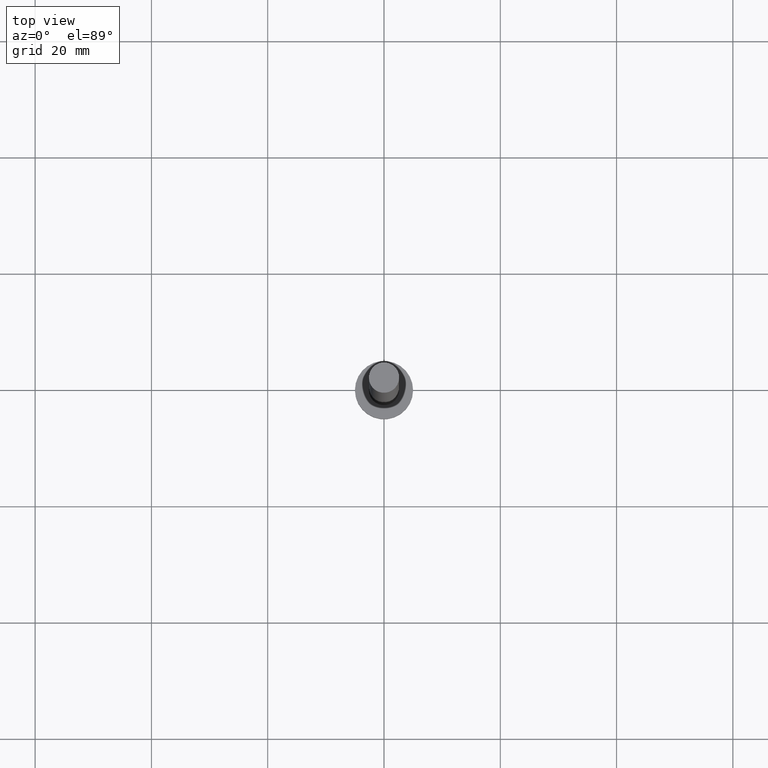
[diagram: clean part render]
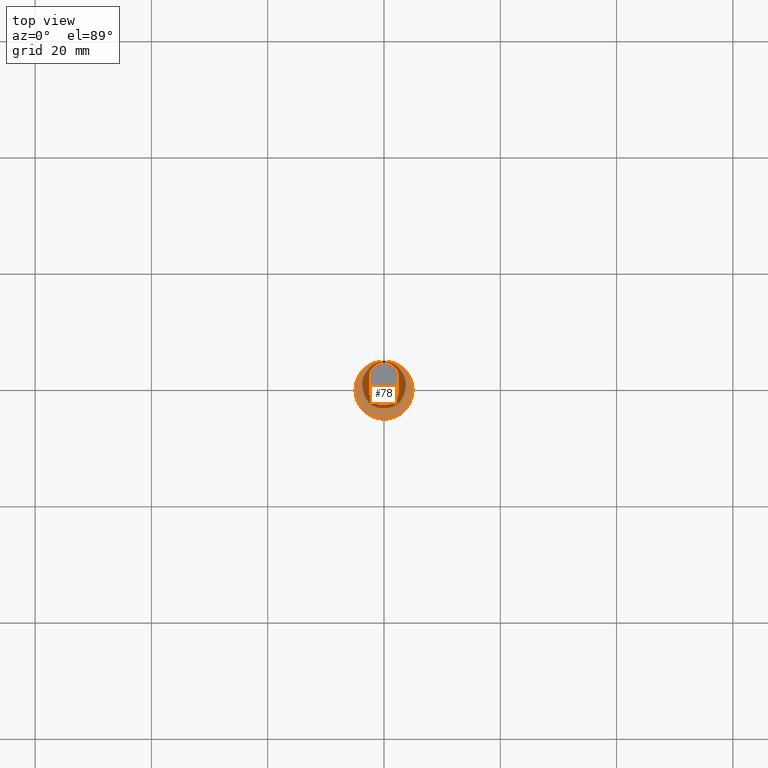
[diagram: same view with one face highlighted and labeled with its STEP entity id]
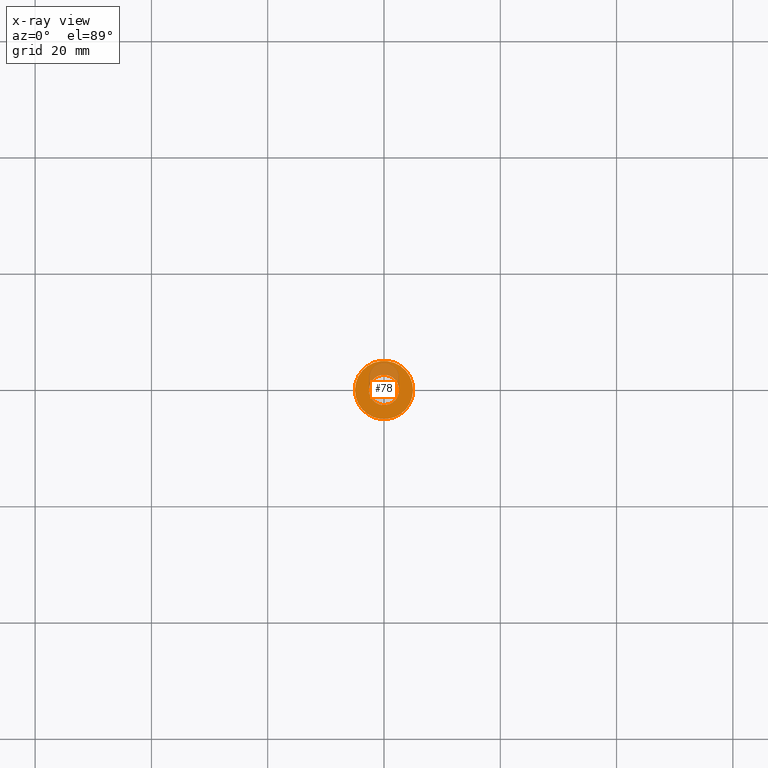
[diagram: x-ray of the same camera — body ghosted, the highlighted face saturated]
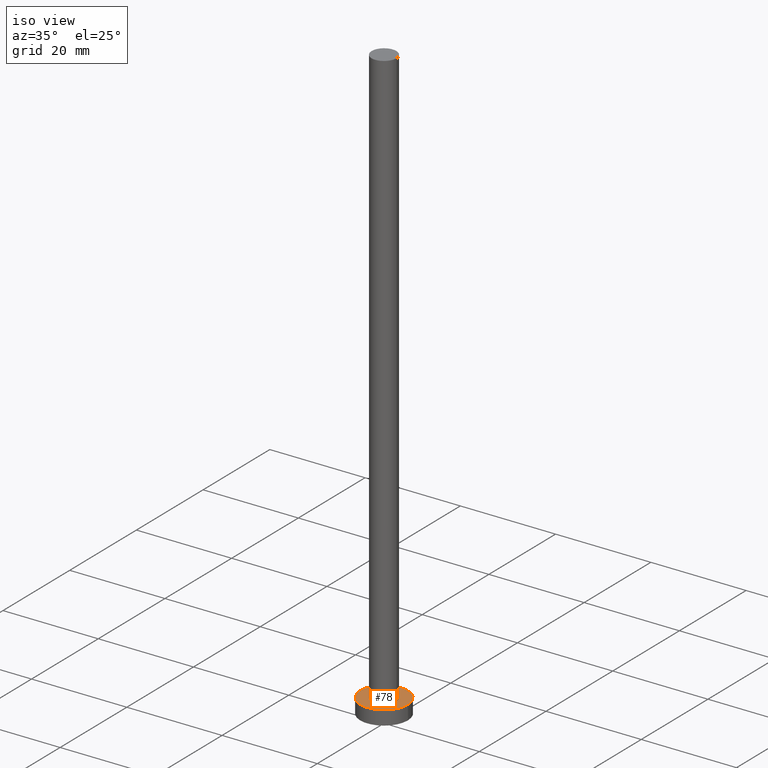
[diagram: same view with one face highlighted and labeled with its STEP entity id]
A machine part, top view. The second image highlights one B-rep face of the part: STEP entity #78.
The next image is the same camera in x-ray: the body ghosted, the highlighted face saturated — about 19% of this face is hidden behind the body in this view.
A second angle (iso view) of the same face is appended — the face is thin or edge-on in the first view.
In plain terms, the highlighted planar face has unit normal (0, 0, 1).
Its self-contained STEP definition (entity closure, byte-faithful):
#5 = CIRCLE ( 'NONE', #147, 2.600000000000000089 ) ;
#6 = AXIS2_PLACEMENT_3D ( 'NONE', #53, #135, #193 ) ;
#17 = ORIENTED_EDGE ( 'NONE', *, *, #155, .F. ) ;
#30 = VERTEX_POINT ( 'NONE', #186 ) ;
#31 = AXIS2_PLACEMENT_3D ( 'NONE', #204, #248, #105 ) ;
#37 = CARTESIAN_POINT ( 'NONE',  ( 2.600000000000000089, 3.184081677783117698E-16, 3.000000000000000000 ) ) ;
#45 = EDGE_LOOP ( 'NONE', ( #106, #17 ) ) ;
#47 = VERTEX_POINT ( 'NONE', #37 ) ;
#48 = FACE_BOUND ( 'NONE', #45, .T. ) ;
#53 = CARTESIAN_POINT ( 'NONE',  ( 0.000000000000000000, 0.000000000000000000, 3.000000000000000000 ) ) ;
#64 = CIRCLE ( 'NONE', #31, 5.000000000000000000 ) ;
#67 = EDGE_CURVE ( 'NONE', #30, #47, #5, .T. ) ;
#68 = CARTESIAN_POINT ( 'NONE',  ( 0.000000000000000000, 0.000000000000000000, 3.000000000000000000 ) ) ;
#69 = FACE_OUTER_BOUND ( 'NONE', #104, .T. ) ;
#74 = EDGE_CURVE ( 'NONE', #227, #210, #64, .T. ) ;
#75 = CARTESIAN_POINT ( 'NONE',  ( 0.000000000000000000, 0.000000000000000000, 3.000000000000000000 ) ) ;
#76 = CARTESIAN_POINT ( 'NONE',  ( 5.000000000000000000, 6.123233995736766282E-16, 3.000000000000000000 ) ) ;
#78 = ADVANCED_FACE ( 'NONE', ( #48, #69 ), #149, .T. ) ;
#87 = CARTESIAN_POINT ( 'NONE',  ( 0.000000000000000000, 0.000000000000000000, 3.000000000000000000 ) ) ;
#94 = CARTESIAN_POINT ( 'NONE',  ( -5.000000000000000000, 0.000000000000000000, 3.000000000000000000 ) ) ;
#99 = AXIS2_PLACEMENT_3D ( 'NONE', #68, #188, #127 ) ;
#103 = AXIS2_PLACEMENT_3D ( 'NONE', #75, #236, #235 ) ;
#104 = EDGE_LOOP ( 'NONE', ( #133, #243 ) ) ;
#105 = DIRECTION ( 'NONE',  ( 1.000000000000000000, 0.000000000000000000, 0.000000000000000000 ) ) ;
#106 = ORIENTED_EDGE ( 'NONE', *, *, #67, .F. ) ;
#127 = DIRECTION ( 'NONE',  ( 1.000000000000000000, 0.000000000000000000, -0.000000000000000000 ) ) ;
#133 = ORIENTED_EDGE ( 'NONE', *, *, #74, .T. ) ;
#135 = DIRECTION ( 'NONE',  ( 0.000000000000000000, 0.000000000000000000, 1.000000000000000000 ) ) ;
#147 = AXIS2_PLACEMENT_3D ( 'NONE', #87, #150, #190 ) ;
#149 = PLANE ( 'NONE',  #99 ) ;
#150 = DIRECTION ( 'NONE',  ( 0.000000000000000000, 0.000000000000000000, 1.000000000000000000 ) ) ;
#155 = EDGE_CURVE ( 'NONE', #47, #30, #208, .T. ) ;
#180 = EDGE_CURVE ( 'NONE', #210, #227, #196, .T. ) ;
#186 = CARTESIAN_POINT ( 'NONE',  ( -2.600000000000000089, 0.000000000000000000, 3.000000000000000000 ) ) ;
#188 = DIRECTION ( 'NONE',  ( 0.000000000000000000, 0.000000000000000000, 1.000000000000000000 ) ) ;
#190 = DIRECTION ( 'NONE',  ( 1.000000000000000000, 0.000000000000000000, 0.000000000000000000 ) ) ;
#193 = DIRECTION ( 'NONE',  ( 1.000000000000000000, 0.000000000000000000, 0.000000000000000000 ) ) ;
#196 = CIRCLE ( 'NONE', #103, 5.000000000000000000 ) ;
#204 = CARTESIAN_POINT ( 'NONE',  ( 0.000000000000000000, 0.000000000000000000, 3.000000000000000000 ) ) ;
#208 = CIRCLE ( 'NONE', #6, 2.600000000000000089 ) ;
#210 = VERTEX_POINT ( 'NONE', #76 ) ;
#227 = VERTEX_POINT ( 'NONE', #94 ) ;
#235 = DIRECTION ( 'NONE',  ( 1.000000000000000000, 0.000000000000000000, 0.000000000000000000 ) ) ;
#236 = DIRECTION ( 'NONE',  ( 0.000000000000000000, 0.000000000000000000, 1.000000000000000000 ) ) ;
#243 = ORIENTED_EDGE ( 'NONE', *, *, #180, .T. ) ;
#248 = DIRECTION ( 'NONE',  ( 0.000000000000000000, 0.000000000000000000, 1.000000000000000000 ) ) ;